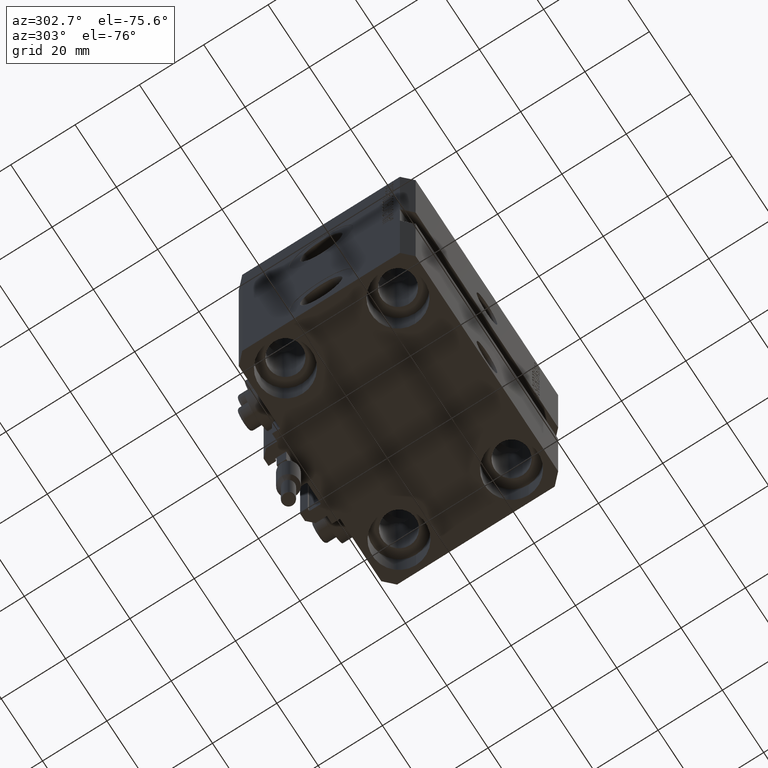
[diagram: clean part render]
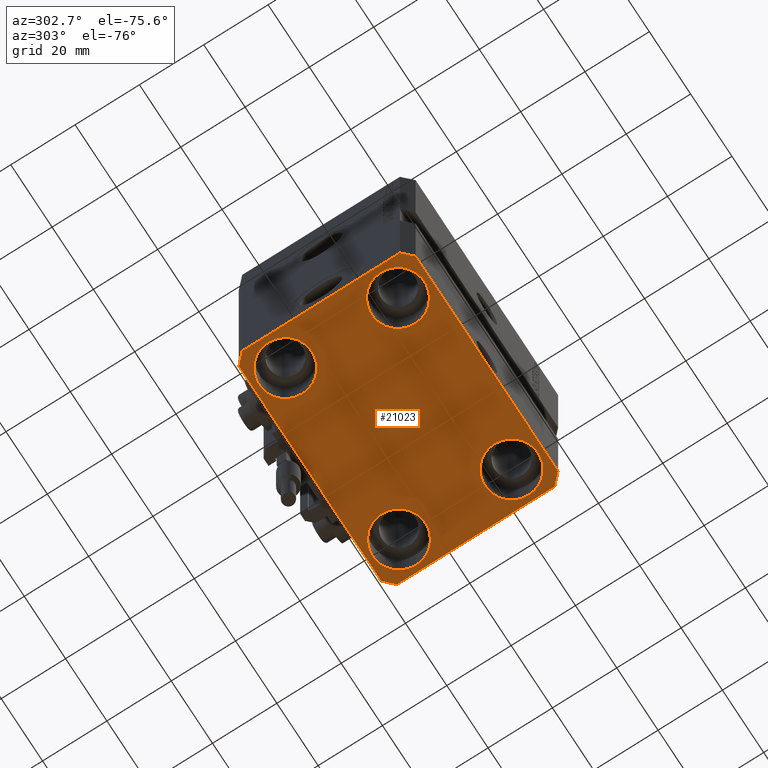
[diagram: same view with one face highlighted and labeled with its STEP entity id]
A machine part, auxiliary view. The second image highlights one B-rep face of the part: STEP entity #21023.
In plain terms, the highlighted planar face has unit normal (0, 0, 1).
Its self-contained STEP definition (entity closure, byte-faithful):
#9 = CIRCLE ( 'NONE', #6361, 8.250000000000000000 ) ;
#363 = DIRECTION ( 'NONE',  ( 1.000000000000000000, 0.000000000000000000, 0.000000000000000000 ) ) ;
#502 = LINE ( 'NONE', #16186, #29404 ) ;
#582 = VECTOR ( 'NONE', #18866, 1000.000000000000000 ) ;
#752 = CARTESIAN_POINT ( 'NONE',  ( 34.49999999999999289, -27.49999999999999645, -80.00000000000000000 ) ) ;
#859 = DIRECTION ( 'NONE',  ( 1.000000000000000000, 0.000000000000000000, 0.000000000000000000 ) ) ;
#1188 = DIRECTION ( 'NONE',  ( 1.000000000000000000, 0.000000000000000000, 0.000000000000000000 ) ) ;
#1550 = AXIS2_PLACEMENT_3D ( 'NONE', #45626, #23492, #363 ) ;
#1595 = DIRECTION ( 'NONE',  ( -0.000000000000000000, -0.000000000000000000, 1.000000000000000000 ) ) ;
#2493 = EDGE_CURVE ( 'NONE', #33207, #41090, #35045, .T. ) ;
#2663 = VECTOR ( 'NONE', #19866, 1000.000000000000000 ) ;
#3460 = CARTESIAN_POINT ( 'NONE',  ( 27.49999999999999645, 17.50000000000001066, -80.00000000000000000 ) ) ;
#3672 = LINE ( 'NONE', #15121, #23640 ) ;
#3687 = LINE ( 'NONE', #15137, #582 ) ;
#3857 = ORIENTED_EDGE ( 'NONE', *, *, #17473, .F. ) ;
#3991 = DIRECTION ( 'NONE',  ( -0.000000000000000000, -0.000000000000000000, 1.000000000000000000 ) ) ;
#4094 = CARTESIAN_POINT ( 'NONE',  ( -34.49999999999999289, 27.50000000000000000, -80.00000000000000000 ) ) ;
#4393 = LINE ( 'NONE', #16591, #45967 ) ;
#4550 = CARTESIAN_POINT ( 'NONE',  ( 34.50000000000056843, 27.50000000000000000, -80.00000000000000000 ) ) ;
#4950 = DIRECTION ( 'NONE',  ( -0.000000000000000000, -0.000000000000000000, 1.000000000000000000 ) ) ;
#5137 = CARTESIAN_POINT ( 'NONE',  ( 34.49999999999999289, -27.49999999999999645, -80.00000000000000000 ) ) ;
#5641 = VECTOR ( 'NONE', #43764, 1000.000000000000000 ) ;
#6179 = CARTESIAN_POINT ( 'NONE',  ( -35.75000000000000711, 17.50000000000000000, -80.00000000000000000 ) ) ;
#6361 = AXIS2_PLACEMENT_3D ( 'NONE', #28456, #1595, #859 ) ;
#6529 = ORIENTED_EDGE ( 'NONE', *, *, #20242, .F. ) ;
#6769 = VERTEX_POINT ( 'NONE', #24628 ) ;
#7026 = ORIENTED_EDGE ( 'NONE', *, *, #13188, .T. ) ;
#7294 = VERTEX_POINT ( 'NONE', #47308 ) ;
#7584 = EDGE_LOOP ( 'NONE', ( #36943, #38524 ) ) ;
#7901 = CARTESIAN_POINT ( 'NONE',  ( -35.75000000000000711, -17.50000000000000000, -80.00000000000000000 ) ) ;
#8080 = EDGE_LOOP ( 'NONE', ( #41022, #41831 ) ) ;
#8166 = CARTESIAN_POINT ( 'NONE',  ( -27.50000000000000355, 17.50000000000000000, -80.00000000000000000 ) ) ;
#8227 = DIRECTION ( 'NONE',  ( -0.7071067811865356934, 0.7071067811865594521, 0.000000000000000000 ) ) ;
#8606 = CIRCLE ( 'NONE', #36385, 8.250000000000000000 ) ;
#9200 = FACE_BOUND ( 'NONE', #8080, .T. ) ;
#9589 = VERTEX_POINT ( 'NONE', #12414 ) ;
#10112 = AXIS2_PLACEMENT_3D ( 'NONE', #3460, #14901, #41505 ) ;
#10454 = VERTEX_POINT ( 'NONE', #11983 ) ;
#10855 = CARTESIAN_POINT ( 'NONE',  ( -27.50000000000000355, -17.50000000000000000, -80.00000000000000000 ) ) ;
#11237 = CIRCLE ( 'NONE', #32691, 8.250000000000000000 ) ;
#11983 = CARTESIAN_POINT ( 'NONE',  ( 37.50000000000051870, 24.49999999999995381, -80.00000000000000000 ) ) ;
#12414 = CARTESIAN_POINT ( 'NONE',  ( 35.75000000000000711, -17.50000000000000000, -80.00000000000000000 ) ) ;
#13188 = EDGE_CURVE ( 'NONE', #37329, #15284, #13319, .T. ) ;
#13319 = CIRCLE ( 'NONE', #10112, 8.249999999999992895 ) ;
#13676 = CARTESIAN_POINT ( 'NONE',  ( -37.49999999999999289, 24.50000000000000000, -80.00000000000000000 ) ) ;
#13713 = ORIENTED_EDGE ( 'NONE', *, *, #21855, .F. ) ;
#14901 = DIRECTION ( 'NONE',  ( -0.000000000000000000, -0.000000000000000000, 1.000000000000000000 ) ) ;
#15121 = CARTESIAN_POINT ( 'NONE',  ( 37.49999999999999289, -24.50000000000000000, -80.00000000000000000 ) ) ;
#15137 = CARTESIAN_POINT ( 'NONE',  ( -34.49999999999998579, -27.49999999999999645, -80.00000000000000000 ) ) ;
#15284 = VERTEX_POINT ( 'NONE', #27591 ) ;
#15313 = EDGE_CURVE ( 'NONE', #23673, #48401, #8606, .T. ) ;
#15440 = CARTESIAN_POINT ( 'NONE',  ( -27.50000000000000355, 17.50000000000000000, -80.00000000000000000 ) ) ;
#16186 = CARTESIAN_POINT ( 'NONE',  ( 37.50000000000051870, 24.49999999999995381, -80.00000000000000000 ) ) ;
#16431 = DIRECTION ( 'NONE',  ( 0.000000000000000000, 0.000000000000000000, 1.000000000000000000 ) ) ;
#16591 = CARTESIAN_POINT ( 'NONE',  ( -34.49999999999999289, 27.50000000000000000, -80.00000000000000000 ) ) ;
#17446 = EDGE_CURVE ( 'NONE', #41090, #6769, #4393, .T. ) ;
#17473 = EDGE_CURVE ( 'NONE', #24349, #36804, #32014, .T. ) ;
#17831 = DIRECTION ( 'NONE',  ( 1.000000000000000000, 0.000000000000000000, 0.000000000000000000 ) ) ;
#17902 = VERTEX_POINT ( 'NONE', #22380 ) ;
#18049 = DIRECTION ( 'NONE',  ( 0.7071067811865483499, -0.7071067811865466846, 0.000000000000000000 ) ) ;
#18096 = ORIENTED_EDGE ( 'NONE', *, *, #34561, .F. ) ;
#18866 = DIRECTION ( 'NONE',  ( 1.000000000000000000, 0.000000000000000000, 0.000000000000000000 ) ) ;
#19201 = EDGE_LOOP ( 'NONE', ( #42453, #20434 ) ) ;
#19866 = DIRECTION ( 'NONE',  ( -1.000000000000000000, 0.000000000000000000, 0.000000000000000000 ) ) ;
#20242 = EDGE_CURVE ( 'NONE', #10454, #33207, #502, .T. ) ;
#20434 = ORIENTED_EDGE ( 'NONE', *, *, #26499, .T. ) ;
#21023 = ADVANCED_FACE ( 'NONE', ( #9200, #40263, #24363, #21359, #24128 ), #43511, .F. ) ;
#21066 = DIRECTION ( 'NONE',  ( 1.000000000000000000, 0.000000000000000000, 0.000000000000000000 ) ) ;
#21359 = FACE_BOUND ( 'NONE', #19201, .T. ) ;
#21795 = CARTESIAN_POINT ( 'NONE',  ( 27.50000000000000355, -17.50000000000000000, -80.00000000000000000 ) ) ;
#21855 = EDGE_CURVE ( 'NONE', #6769, #40110, #28362, .T. ) ;
#22163 = CIRCLE ( 'NONE', #1550, 8.249999999999992895 ) ;
#22315 = AXIS2_PLACEMENT_3D ( 'NONE', #10855, #33744, #17831 ) ;
#22359 = EDGE_CURVE ( 'NONE', #48401, #23673, #29505, .T. ) ;
#22380 = CARTESIAN_POINT ( 'NONE',  ( 19.25000000000000000, -17.50000000000000000, -80.00000000000000000 ) ) ;
#23492 = DIRECTION ( 'NONE',  ( -0.000000000000000000, -0.000000000000000000, 1.000000000000000000 ) ) ;
#23558 = DIRECTION ( 'NONE',  ( 1.076236605503979380E-14, 1.000000000000000000, 0.000000000000000000 ) ) ;
#23640 = VECTOR ( 'NONE', #23558, 1000.000000000000000 ) ;
#23673 = VERTEX_POINT ( 'NONE', #7901 ) ;
#23962 = CIRCLE ( 'NONE', #28723, 8.250000000000000000 ) ;
#24128 = FACE_OUTER_BOUND ( 'NONE', #38422, .T. ) ;
#24349 = VERTEX_POINT ( 'NONE', #752 ) ;
#24363 = FACE_BOUND ( 'NONE', #32240, .T. ) ;
#24628 = CARTESIAN_POINT ( 'NONE',  ( -37.49999999999999289, 24.50000000000000000, -80.00000000000000000 ) ) ;
#26042 = EDGE_CURVE ( 'NONE', #31640, #47571, #31135, .T. ) ;
#26229 = ORIENTED_EDGE ( 'NONE', *, *, #41905, .T. ) ;
#26499 = EDGE_CURVE ( 'NONE', #47571, #31640, #23962, .T. ) ;
#27591 = CARTESIAN_POINT ( 'NONE',  ( 35.74999999999999289, 17.50000000000001066, -80.00000000000000000 ) ) ;
#28362 = LINE ( 'NONE', #13676, #5641 ) ;
#28456 = CARTESIAN_POINT ( 'NONE',  ( 27.50000000000000355, -17.50000000000000000, -80.00000000000000000 ) ) ;
#28723 = AXIS2_PLACEMENT_3D ( 'NONE', #8166, #43205, #1188 ) ;
#28793 = DIRECTION ( 'NONE',  ( -0.000000000000000000, -0.000000000000000000, 1.000000000000000000 ) ) ;
#29211 = VECTOR ( 'NONE', #18049, 1000.000000000000000 ) ;
#29404 = VECTOR ( 'NONE', #8227, 1000.000000000000114 ) ;
#29505 = CIRCLE ( 'NONE', #22315, 8.250000000000000000 ) ;
#30918 = VECTOR ( 'NONE', #46425, 1000.000000000000114 ) ;
#31135 = CIRCLE ( 'NONE', #38223, 8.250000000000000000 ) ;
#31342 = CARTESIAN_POINT ( 'NONE',  ( -27.50000000000000355, -17.50000000000000000, -80.00000000000000000 ) ) ;
#31640 = VERTEX_POINT ( 'NONE', #6179 ) ;
#32014 = LINE ( 'NONE', #5137, #30918 ) ;
#32240 = EDGE_LOOP ( 'NONE', ( #7026, #26229 ) ) ;
#32642 = AXIS2_PLACEMENT_3D ( 'NONE', #39782, #16431, #39542 ) ;
#32691 = AXIS2_PLACEMENT_3D ( 'NONE', #21795, #28793, #21066 ) ;
#33207 = VERTEX_POINT ( 'NONE', #4550 ) ;
#33635 = EDGE_CURVE ( 'NONE', #7294, #24349, #3687, .T. ) ;
#33744 = DIRECTION ( 'NONE',  ( -0.000000000000000000, -0.000000000000000000, 1.000000000000000000 ) ) ;
#34489 = EDGE_CURVE ( 'NONE', #36804, #10454, #3672, .T. ) ;
#34561 = EDGE_CURVE ( 'NONE', #40110, #7294, #43688, .T. ) ;
#35045 = LINE ( 'NONE', #42733, #2663 ) ;
#36017 = DIRECTION ( 'NONE',  ( 1.000000000000000000, 0.000000000000000000, 0.000000000000000000 ) ) ;
#36385 = AXIS2_PLACEMENT_3D ( 'NONE', #31342, #4950, #36017 ) ;
#36804 = VERTEX_POINT ( 'NONE', #44622 ) ;
#36943 = ORIENTED_EDGE ( 'NONE', *, *, #46988, .T. ) ;
#37329 = VERTEX_POINT ( 'NONE', #49149 ) ;
#38223 = AXIS2_PLACEMENT_3D ( 'NONE', #15440, #3991, #45524 ) ;
#38422 = EDGE_LOOP ( 'NONE', ( #46374, #6529, #40803, #3857, #40548, #18096, #13713, #39625 ) ) ;
#38524 = ORIENTED_EDGE ( 'NONE', *, *, #43399, .T. ) ;
#38970 = DIRECTION ( 'NONE',  ( -0.7071067811865471286, -0.7071067811865479058, 0.000000000000000000 ) ) ;
#39233 = CARTESIAN_POINT ( 'NONE',  ( -19.25000000000000355, -17.50000000000000000, -80.00000000000000000 ) ) ;
#39542 = DIRECTION ( 'NONE',  ( 1.000000000000000000, 0.000000000000000000, -0.000000000000000000 ) ) ;
#39625 = ORIENTED_EDGE ( 'NONE', *, *, #17446, .F. ) ;
#39782 = CARTESIAN_POINT ( 'NONE',  ( 0.000000000000000000, 0.000000000000000000, -80.00000000000000000 ) ) ;
#40110 = VERTEX_POINT ( 'NONE', #47317 ) ;
#40263 = FACE_BOUND ( 'NONE', #7584, .T. ) ;
#40548 = ORIENTED_EDGE ( 'NONE', *, *, #33635, .F. ) ;
#40803 = ORIENTED_EDGE ( 'NONE', *, *, #34489, .F. ) ;
#41022 = ORIENTED_EDGE ( 'NONE', *, *, #15313, .T. ) ;
#41090 = VERTEX_POINT ( 'NONE', #4094 ) ;
#41505 = DIRECTION ( 'NONE',  ( 1.000000000000000000, 0.000000000000000000, 0.000000000000000000 ) ) ;
#41831 = ORIENTED_EDGE ( 'NONE', *, *, #22359, .T. ) ;
#41905 = EDGE_CURVE ( 'NONE', #15284, #37329, #22163, .T. ) ;
#42453 = ORIENTED_EDGE ( 'NONE', *, *, #26042, .T. ) ;
#42733 = CARTESIAN_POINT ( 'NONE',  ( 34.50000000000056843, 27.50000000000000000, -80.00000000000000000 ) ) ;
#43205 = DIRECTION ( 'NONE',  ( -0.000000000000000000, -0.000000000000000000, 1.000000000000000000 ) ) ;
#43399 = EDGE_CURVE ( 'NONE', #9589, #17902, #9, .T. ) ;
#43511 = PLANE ( 'NONE',  #32642 ) ;
#43688 = LINE ( 'NONE', #47885, #29211 ) ;
#43764 = DIRECTION ( 'NONE',  ( 0.000000000000000000, -1.000000000000000000, 0.000000000000000000 ) ) ;
#44622 = CARTESIAN_POINT ( 'NONE',  ( 37.49999999999999289, -24.50000000000000000, -80.00000000000000000 ) ) ;
#45295 = CARTESIAN_POINT ( 'NONE',  ( -19.25000000000000355, 17.50000000000000000, -80.00000000000000000 ) ) ;
#45524 = DIRECTION ( 'NONE',  ( 1.000000000000000000, 0.000000000000000000, 0.000000000000000000 ) ) ;
#45626 = CARTESIAN_POINT ( 'NONE',  ( 27.49999999999999645, 17.50000000000001066, -80.00000000000000000 ) ) ;
#45967 = VECTOR ( 'NONE', #38970, 1000.000000000000000 ) ;
#46374 = ORIENTED_EDGE ( 'NONE', *, *, #2493, .F. ) ;
#46425 = DIRECTION ( 'NONE',  ( 0.7071067811865474617, 0.7071067811865474617, 0.000000000000000000 ) ) ;
#46988 = EDGE_CURVE ( 'NONE', #17902, #9589, #11237, .T. ) ;
#47308 = CARTESIAN_POINT ( 'NONE',  ( -34.49999999999998579, -27.49999999999999645, -80.00000000000000000 ) ) ;
#47317 = CARTESIAN_POINT ( 'NONE',  ( -37.49999999999999289, -24.50000000000000000, -80.00000000000000000 ) ) ;
#47571 = VERTEX_POINT ( 'NONE', #45295 ) ;
#47885 = CARTESIAN_POINT ( 'NONE',  ( -37.49999999999999289, -24.50000000000000000, -80.00000000000000000 ) ) ;
#48401 = VERTEX_POINT ( 'NONE', #39233 ) ;
#49149 = CARTESIAN_POINT ( 'NONE',  ( 19.25000000000000000, 17.50000000000001066, -80.00000000000000000 ) ) ;